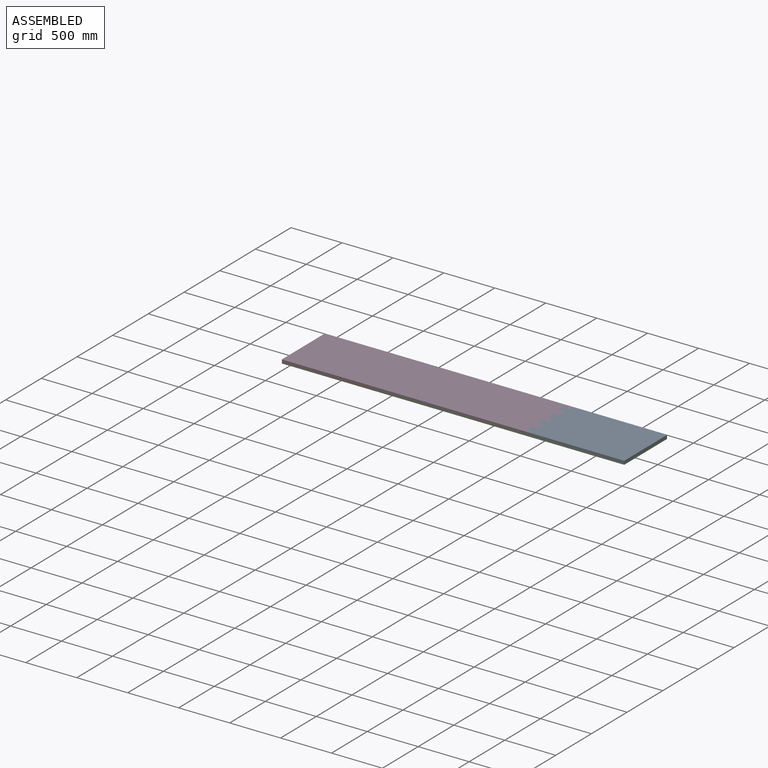
[diagram: assembled view]
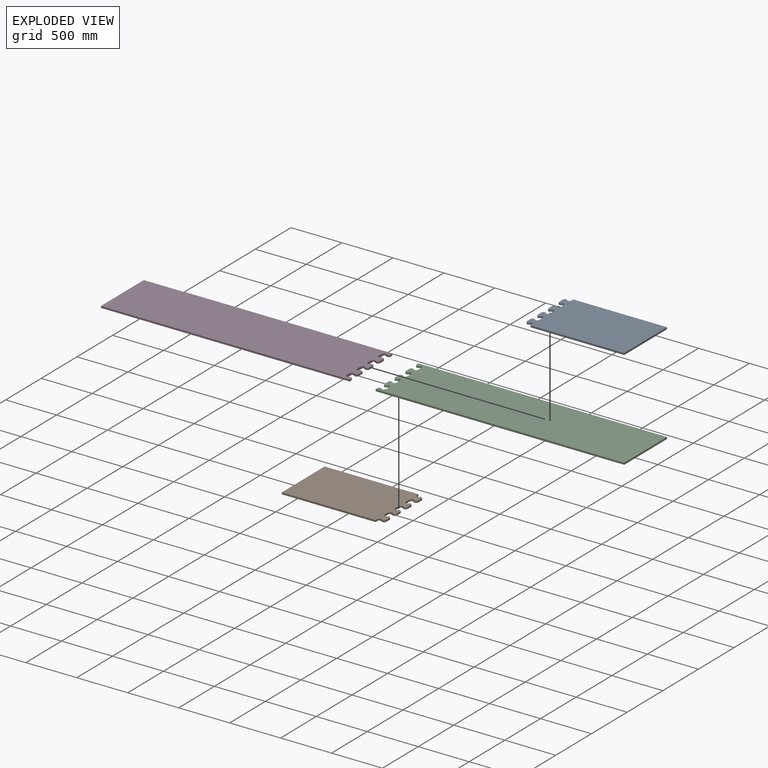
[diagram: exploded view]
GUIDED TOUR — MATED ASSEMBLY (Onshape document 2c39e0336931a6de3b115671, AutoMate assembly 2c39e0336931a6de3b115671_1bd109c0c82dfc7779f7eec5_308f37ecb69515ca1b33627b_default)

This assembly has 4 components, labeled P0..P3 below (a component is one placed occurrence of a part; the same part can appear more than once), held together by 3 mates. A mate is a constraint between two components; its type names the relative motion it leaves free:
  FASTENED — locks the two components together rigidly (no relative motion).
Axis/direction vectors are unit vectors and 'through' points are millimeter coordinates, both in the assembly's world frame.

MATES
  1. FASTENED "Fastened 2": P1 <-> P3, direction (0.000, 0.000, 1.000) through (-1086.92, 312.04, 18.00) mm
  2. FASTENED "Fastened 1": P0 <-> P3, direction (-1.000, 0.000, 0.000) through (1285.15, 237.04, 27.00) mm
  3. FASTENED "Fastened 3": P0 <-> P2, direction (0.000, 0.000, -1.000) through (2273.08, -287.96, 18.00) mm

ASSEMBLY ORDER
  1. P2 — the base component [order verified]
  2. P1 [order verified]
  3. P3 [order verified]
  4. P0 [order verified]
Order-tag legend:
  [order verified] — this step's position reverses a verified removal order: the component was checked to insert without passing through the ones already placed.

Of the 4 components, 4 carry the full construction recipe — the FeatureScript program that regenerates the part's solid from scratch; the rest are supplied as boundary geometry only.
Each toured component is shown spotlighted twice — in the assembled view, then in the exploded view, where a leader line traces a displaced component back to its assembled socket (saturated green if recipe-attached, orange if geometry-only; every other component desaturated gray) — followed by its recipe or geometry summary and the mates that hold it.
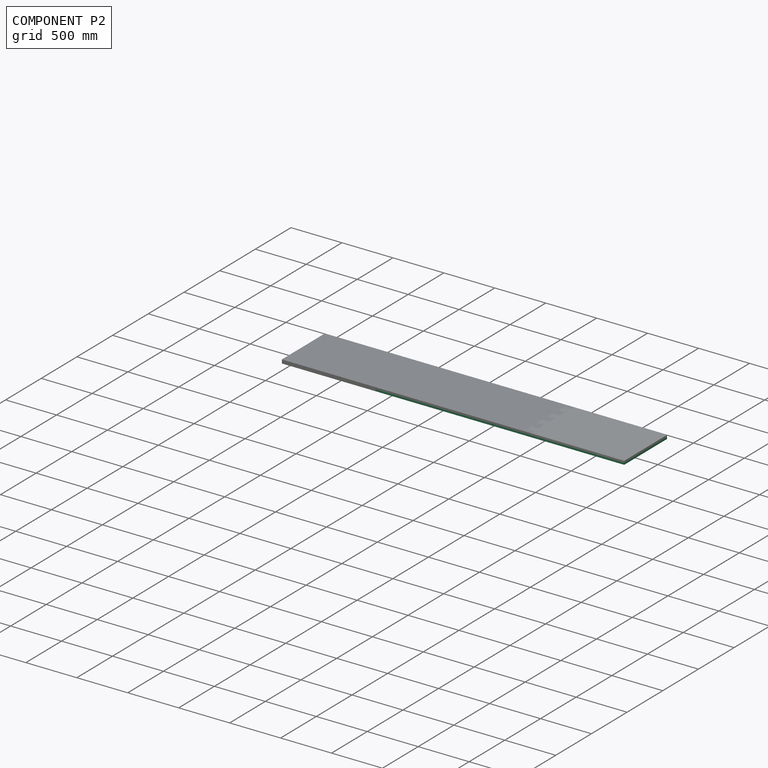
[diagram: component P2 — assembled]
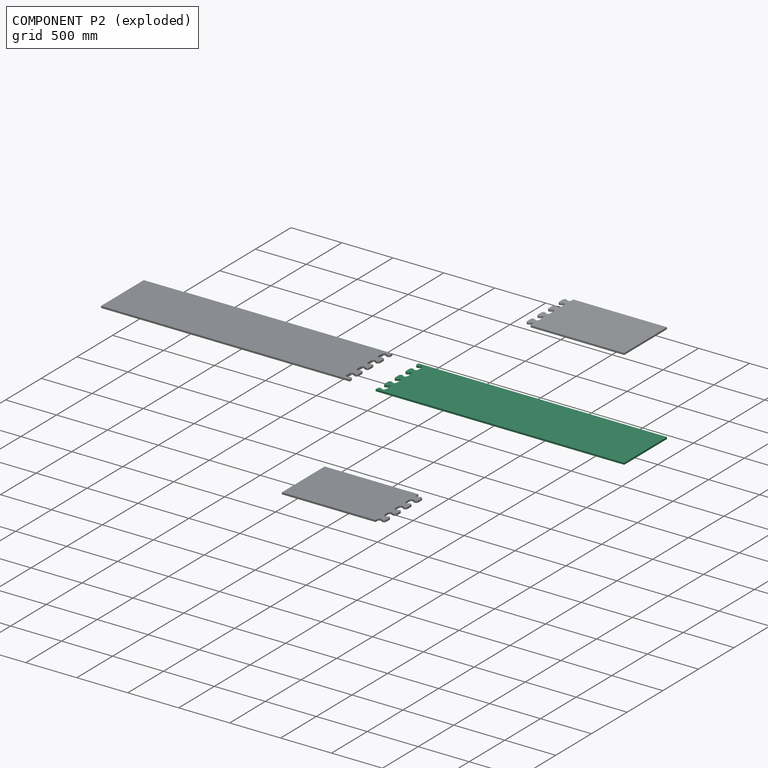
[diagram: component P2 — exploded]
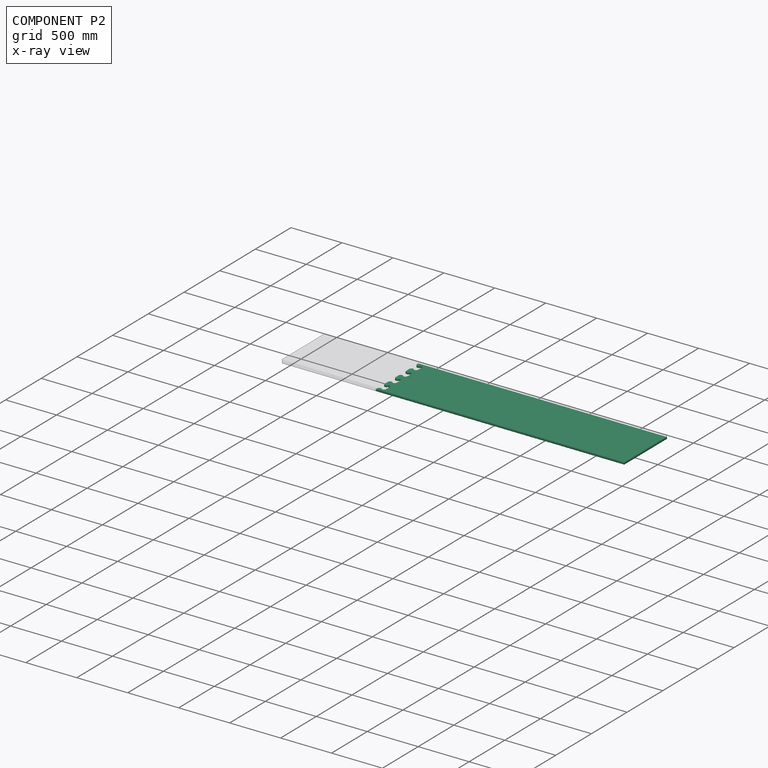
[diagram: component P2 — x-ray view]
COMPONENT P2 — recipe-attached (CADFS 00463583, mesh-verified: the recipe's output STEP matches this component's geometry to below the mesh-comparison resolution (tessellation chordal tolerance ~3.77 mm)).
Held by: FASTENED mate "Fastened 3" to P0.
Construction recipe (FeatureScript — the CAD program that rebuilds this solid; sketch coordinates are in the units given by the * unit suffixes, e.g. mm):

FeatureScript 1511;
import(path : "onshape/std/geometry.fs", version : "1511.0");
import(path : "onshape/std/common.fs", version : "1511.0");
const mm = millimeter;
const VERTEX = EntityType.VERTEX;
const EDGE = EntityType.EDGE;
const FACE = EntityType.FACE;
const BODY = EntityType.BODY;
function v(x, y){return vector(x, y);}
function OD(order){return orderDisambiguation(order);}
function OSD(set){return originalSetDisambiguation(set);}
function TD(topology){return topologyDisambiguation(topology);}
function TDD(query){return trueDependencyDisambiguation(query);}
function sQuery(a, b, c) {return sketchEntityQuery(a, b, c);}

annotation { "Feature Type Name" : "Feature", "Feature Type Description" : "" }
export const myFeature = defineFeature(function(context is Context, id is Id, definition is map)
    precondition{}
    {
        {
            var Q0;
            Q0=qCreatedBy(makeId("Top.planeOp"),FACE);
            var sketch = newSketch(context, id + "F0", { "sketchPlane" : qUnion([Q0])});
            skLineSegment(sketch, "E0.bottom", {"start": v(-1236.35, 978.6) * mm, "end": v(1203.65, 978.6) * mm});
            skLineSegment(sketch, "E0.right", {"start": v(1203.65, 978.6) * mm, "end": v(1203.65, 378.6) * mm});
            skLineSegment(sketch, "E1", {"start": v(-1236.35, 978.6) * mm, "end": v(-1236.35, 953.6) * mm});
            skLineSegment(sketch, "E2", {"start": v(-1236.35, 953.6) * mm, "end": v(-1236.35, 903.6) * mm, "construction": true});
            skLineSegment(sketch, "E3", {"start": v(-1168.41, 928.6) * mm, "end": v(-1168.41, 903.6) * mm});
            skLineSegment(sketch, "E4", {"start": v(-1236.35, 903.6) * mm, "end": v(-1168.41, 903.6) * mm, "construction": true});
            skLineSegment(sketch, "E5", {"start": v(-1236.35, 953.6) * mm, "end": v(-1168.41, 928.6) * mm, "construction": true});
            skArc(sketch, "E6", {"start": v(-1236.35, 953.6) * mm, "mid": v(-1223.73, 935.5) * mm, "end": v(-1202.38, 941.1) * mm});
            skArc(sketch, "E7", {"start": v(-1168.41, 928.6) * mm, "mid": v(-1181.04, 946.7) * mm, "end": v(-1202.38, 941.1) * mm});
            skArc(sketch, "E8.MirrorCS", {"start": v(-1236.35, 853.6) * mm, "mid": v(-1223.73, 871.7) * mm, "end": v(-1202.38, 866.1) * mm});
            skArc(sketch, "E9.MirrorCS", {"start": v(-1168.41, 878.6) * mm, "mid": v(-1181.04, 860.5) * mm, "end": v(-1202.38, 866.1) * mm});
            skLineSegment(sketch, "E10.MirrorCS", {"start": v(-1168.41, 878.6) * mm, "end": v(-1168.41, 903.6) * mm});
            skLineSegment(sketch, "E11", {"start": v(-1236.35, 853.6) * mm, "end": v(-1236.35, 803.6) * mm});
            skArc(sketch, "E12.0.1.0", {"start": v(-1236.35, 803.6) * mm, "mid": v(-1223.73, 785.5) * mm, "end": v(-1202.38, 791.1) * mm});
            skArc(sketch, "E12.0.1.1", {"start": v(-1168.41, 778.6) * mm, "mid": v(-1181.04, 796.7) * mm, "end": v(-1202.38, 791.1) * mm});
            skLineSegment(sketch, "E12.0.1.2", {"start": v(-1168.41, 778.6) * mm, "end": v(-1168.41, 753.6) * mm});
            skLineSegment(sketch, "E12.0.1.3", {"start": v(-1168.41, 728.6) * mm, "end": v(-1168.41, 753.6) * mm});
            skArc(sketch, "E12.0.1.4", {"start": v(-1168.41, 728.6) * mm, "mid": v(-1181.04, 710.5) * mm, "end": v(-1202.38, 716.1) * mm});
            skArc(sketch, "E12.0.1.5", {"start": v(-1236.35, 703.6) * mm, "mid": v(-1223.73, 721.7) * mm, "end": v(-1202.38, 716.1) * mm});
            skLineSegment(sketch, "E12.0.1.6", {"start": v(-1236.35, 703.6) * mm, "end": v(-1236.35, 653.6) * mm});
            skArc(sketch, "E12.0.2.0", {"start": v(-1236.35, 653.6) * mm, "mid": v(-1223.73, 635.5) * mm, "end": v(-1202.38, 641.1) * mm});
            skArc(sketch, "E12.0.2.1", {"start": v(-1168.41, 628.6) * mm, "mid": v(-1181.04, 646.7) * mm, "end": v(-1202.38, 641.1) * mm});
            skLineSegment(sketch, "E12.0.2.2", {"start": v(-1168.41, 628.6) * mm, "end": v(-1168.41, 603.6) * mm});
            skLineSegment(sketch, "E12.0.2.3", {"start": v(-1168.41, 578.6) * mm, "end": v(-1168.41, 603.6) * mm});
            skArc(sketch, "E12.0.2.4", {"start": v(-1168.41, 578.6) * mm, "mid": v(-1181.04, 560.5) * mm, "end": v(-1202.38, 566.1) * mm});
            skArc(sketch, "E12.0.2.5", {"start": v(-1236.35, 553.6) * mm, "mid": v(-1223.73, 571.7) * mm, "end": v(-1202.38, 566.1) * mm});
            skLineSegment(sketch, "E12.0.2.6", {"start": v(-1236.35, 553.6) * mm, "end": v(-1236.35, 503.6) * mm});
            skArc(sketch, "E12.0.3.0", {"start": v(-1236.35, 503.6) * mm, "mid": v(-1223.73, 485.5) * mm, "end": v(-1202.38, 491.1) * mm});
            skArc(sketch, "E12.0.3.1", {"start": v(-1168.41, 478.6) * mm, "mid": v(-1181.04, 496.7) * mm, "end": v(-1202.38, 491.1) * mm});
            skLineSegment(sketch, "E12.0.3.2", {"start": v(-1168.41, 478.6) * mm, "end": v(-1168.41, 453.6) * mm});
            skLineSegment(sketch, "E12.0.3.3", {"start": v(-1168.41, 428.6) * mm, "end": v(-1168.41, 453.6) * mm});
            skArc(sketch, "E12.0.3.4", {"start": v(-1168.41, 428.6) * mm, "mid": v(-1181.04, 410.5) * mm, "end": v(-1202.38, 416.1) * mm});
            skArc(sketch, "E12.0.3.5", {"start": v(-1236.35, 403.6) * mm, "mid": v(-1223.73, 421.7) * mm, "end": v(-1202.38, 416.1) * mm});
            skLineSegment(sketch, "E12.0.3.6", {"start": v(-1236.35, 403.6) * mm, "end": v(-1236.35, 378.6) * mm});
            skLineSegment(sketch, "E12.direction1", {"start": v(-1236.35, 803.6) * mm, "end": v(-1211.35, 803.6) * mm, "construction": true});
            skLineSegment(sketch, "E12.direction2", {"start": v(-1236.35, 803.6) * mm, "end": v(-1236.35, 653.6) * mm, "construction": true});
            skLineSegment(sketch, "E13.0", {"start": v(-1236.35, 378.6) * mm, "end": v(1203.65, 378.6) * mm});
            skSolve(sketch);
        }
        {
            var Q0;
            Q0=makeQuery(id+"F0.imprint","IMPRINT",FACE,{"disambiguationData":[TD([[makeQuery(id+"F0.imprint","IMPRINT",EDGE,{"derivedFrom":sQuery(id+"F0.wireOp",EDGE,"E0.bottom")}),-1.0]])]});
            extrude(context, id + "F1", {"entities" : qUnion([Q0]), "depth" : 18 * mm});
        }
    });
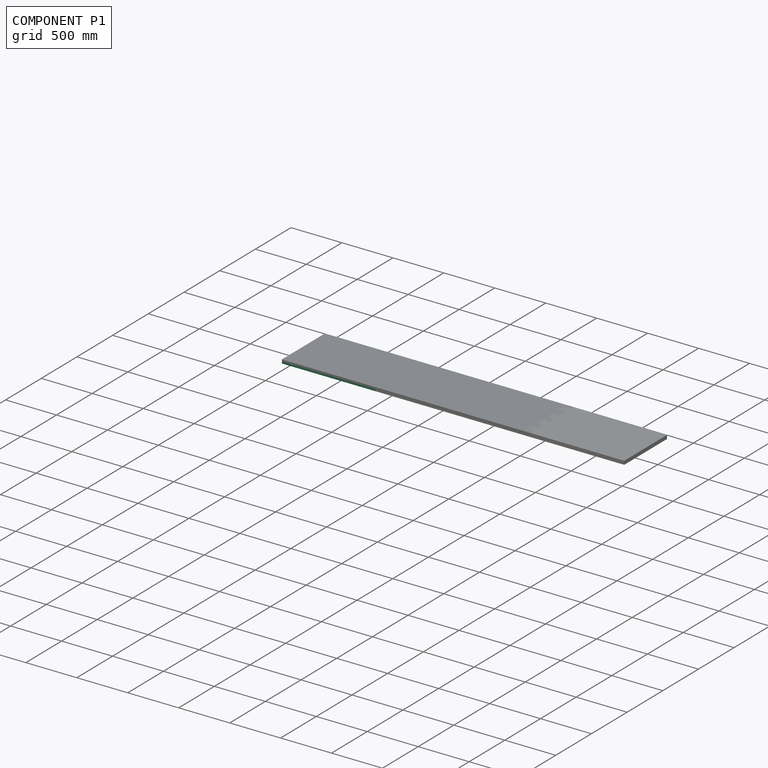
[diagram: component P1 — assembled]
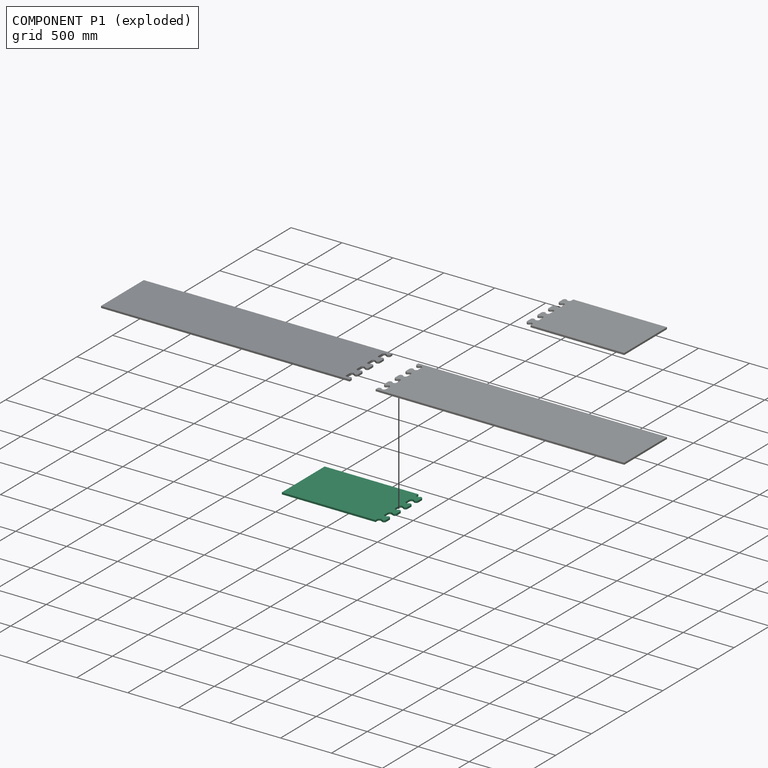
[diagram: component P1 — exploded]
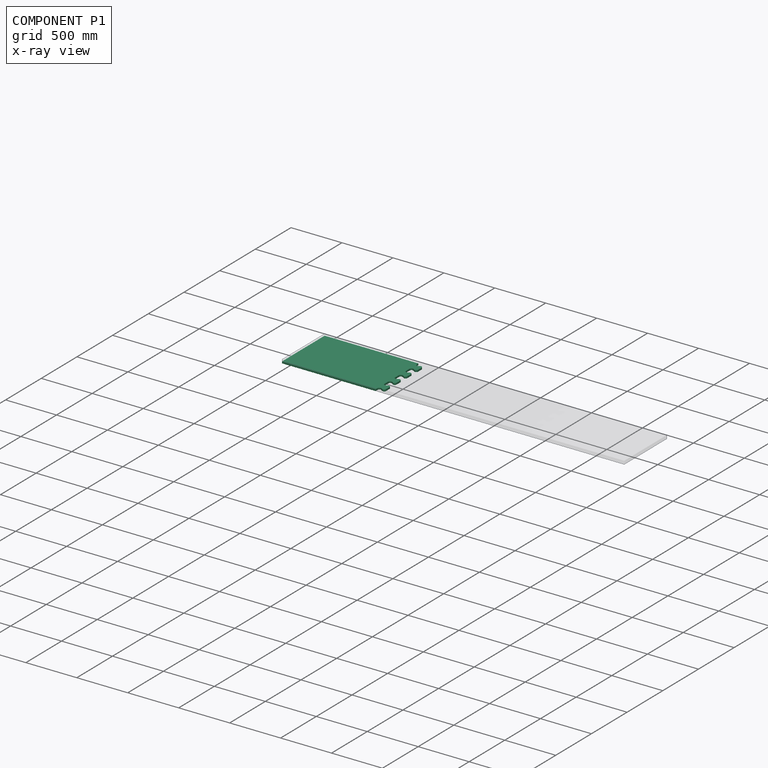
[diagram: component P1 — x-ray view]
COMPONENT P1 — same part as P0 (CADFS 00463584); its construction recipe is shown at P0.
Held by: FASTENED mate "Fastened 2" to P3.
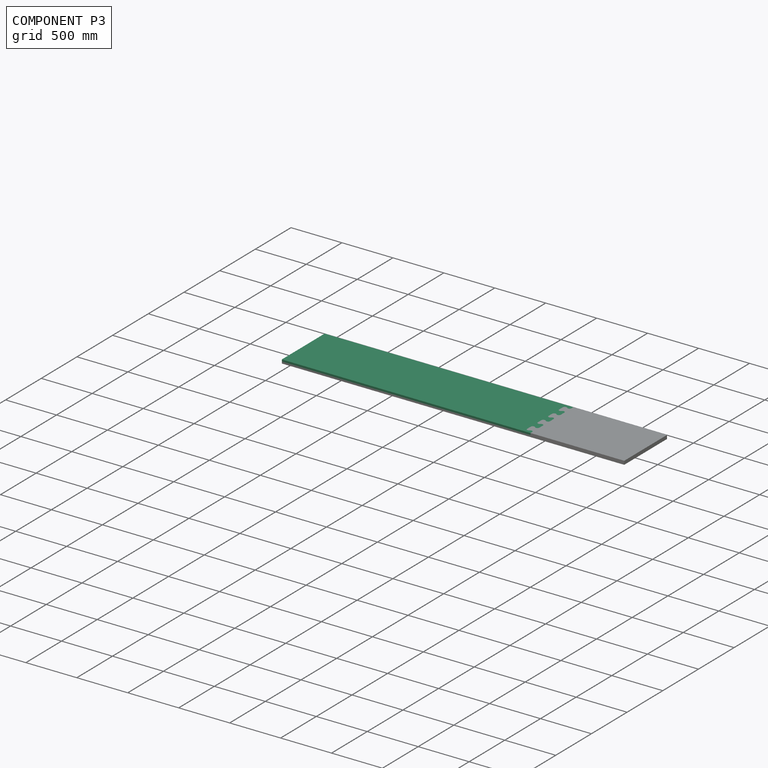
[diagram: component P3 — assembled]
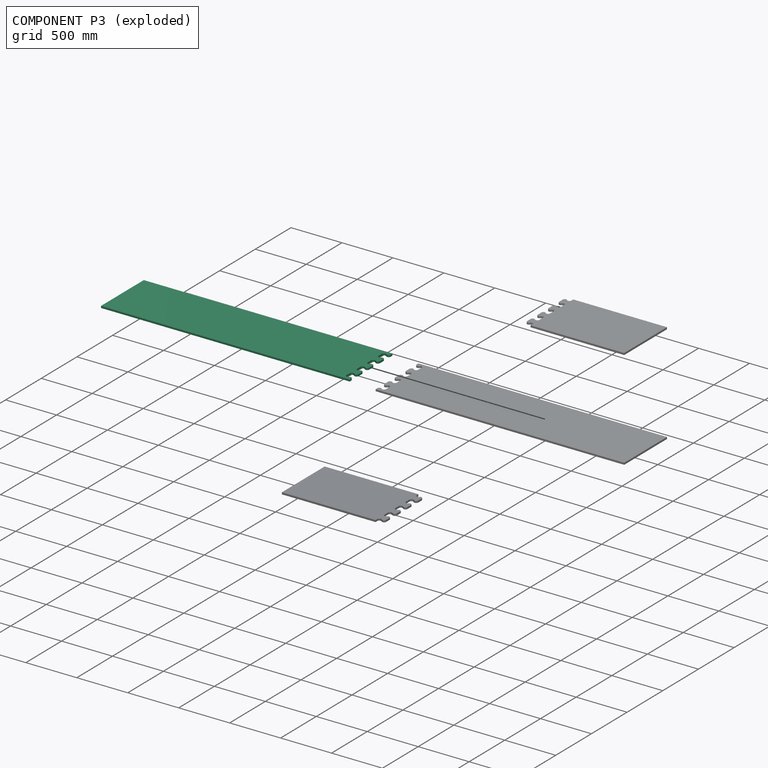
[diagram: component P3 — exploded]
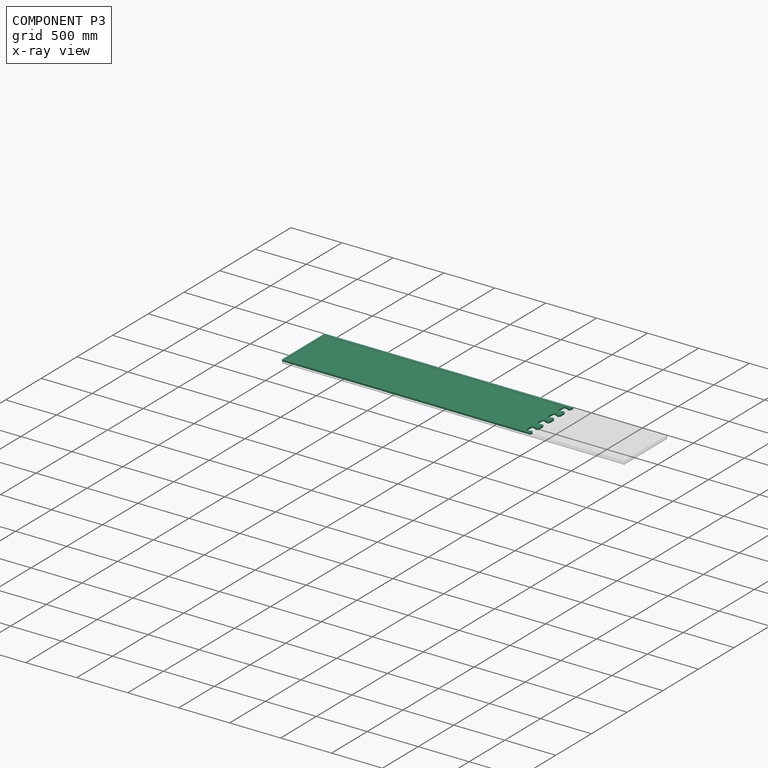
[diagram: component P3 — x-ray view]
COMPONENT P3 — same part as P2 (CADFS 00463583); its construction recipe is shown at P2.
Held by: FASTENED mate "Fastened 2" to P1; FASTENED mate "Fastened 1" to P0.
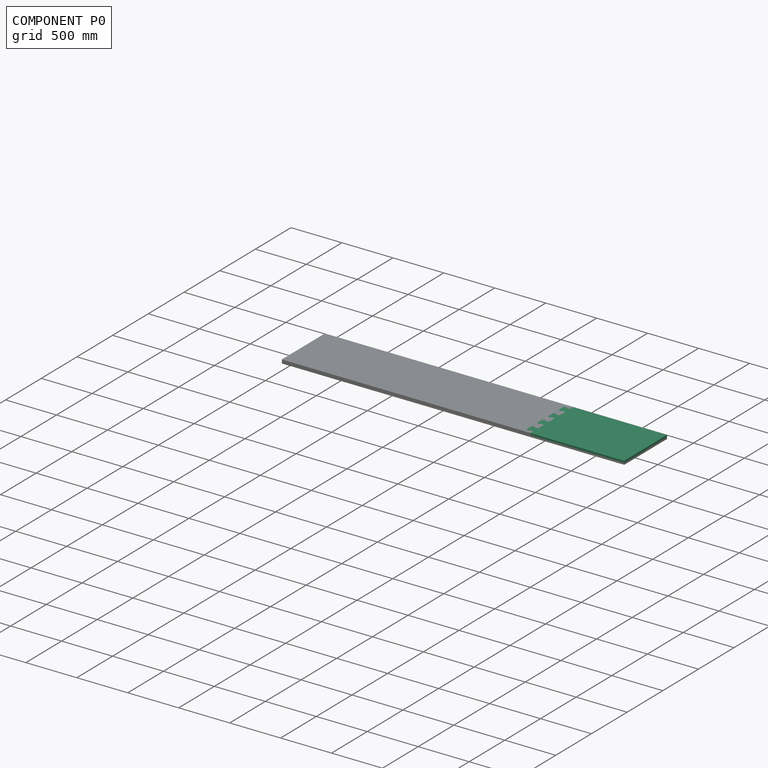
[diagram: component P0 — assembled]
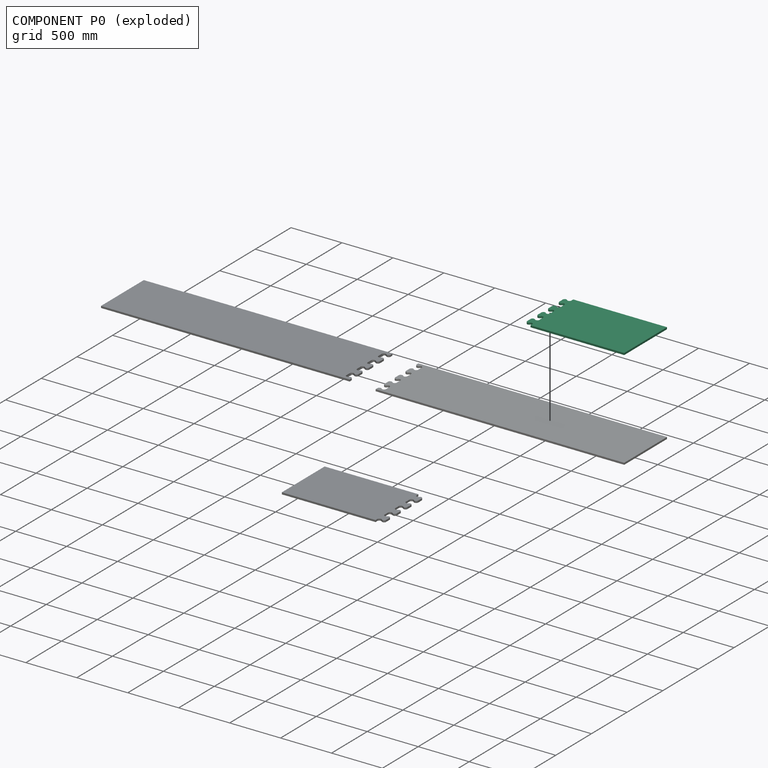
[diagram: component P0 — exploded]
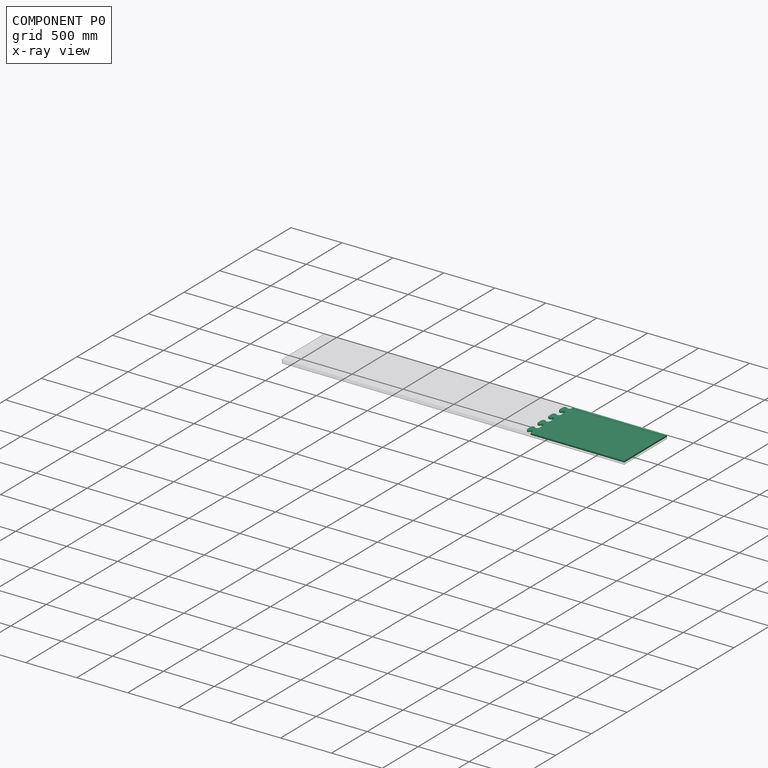
[diagram: component P0 — x-ray view]
COMPONENT P0 — recipe-attached (CADFS 00463584, mesh-verified: the recipe's output STEP matches this component's geometry to below the mesh-comparison resolution (tessellation chordal tolerance ~1.73 mm)).
Held by: FASTENED mate "Fastened 1" to P3; FASTENED mate "Fastened 3" to P2.
Construction recipe (FeatureScript — the CAD program that rebuilds this solid; sketch coordinates are in the units given by the * unit suffixes, e.g. mm):

FeatureScript 1511;
import(path : "onshape/std/geometry.fs", version : "1511.0");
import(path : "onshape/std/common.fs", version : "1511.0");
const mm = millimeter;
const VERTEX = EntityType.VERTEX;
const EDGE = EntityType.EDGE;
const FACE = EntityType.FACE;
const BODY = EntityType.BODY;
function v(x, y){return vector(x, y);}
function OD(order){return orderDisambiguation(order);}
function OSD(set){return originalSetDisambiguation(set);}
function TD(topology){return topologyDisambiguation(topology);}
function TDD(query){return trueDependencyDisambiguation(query);}
function sQuery(a, b, c) {return sketchEntityQuery(a, b, c);}

annotation { "Feature Type Name" : "Feature", "Feature Type Description" : "" }
export const myFeature = defineFeature(function(context is Context, id is Id, definition is map)
    precondition{}
    {
        {
            var Q0;
            Q0=qCreatedBy(makeId("Top.planeOp"),FACE);
            var sketch = newSketch(context, id + "F0", { "sketchPlane" : qUnion([Q0])});
            skLineSegment(sketch, "E0.right", {"start": v(-2156.35, 978.6) * mm, "end": v(-2156.35, 378.6) * mm});
            skLineSegment(sketch, "E1", {"start": v(-1236.35, 978.6) * mm, "end": v(-1236.35, 953.6) * mm});
            skLineSegment(sketch, "E2", {"start": v(-1236.35, 953.6) * mm, "end": v(-1236.35, 903.6) * mm, "construction": true});
            skLineSegment(sketch, "E3", {"start": v(-1168.41, 928.6) * mm, "end": v(-1168.41, 903.6) * mm});
            skLineSegment(sketch, "E4", {"start": v(-1236.35, 903.6) * mm, "end": v(-1168.41, 903.6) * mm, "construction": true});
            skLineSegment(sketch, "E5", {"start": v(-1236.35, 953.6) * mm, "end": v(-1168.41, 928.6) * mm, "construction": true});
            skArc(sketch, "E6", {"start": v(-1236.35, 953.6) * mm, "mid": v(-1223.73, 935.5) * mm, "end": v(-1202.38, 941.1) * mm});
            skArc(sketch, "E7", {"start": v(-1168.41, 928.6) * mm, "mid": v(-1181.04, 946.7) * mm, "end": v(-1202.38, 941.1) * mm});
            skArc(sketch, "E8.MirrorCS", {"start": v(-1236.35, 853.6) * mm, "mid": v(-1223.73, 871.7) * mm, "end": v(-1202.38, 866.1) * mm});
            skArc(sketch, "E9.MirrorCS", {"start": v(-1168.41, 878.6) * mm, "mid": v(-1181.04, 860.5) * mm, "end": v(-1202.38, 866.1) * mm});
            skLineSegment(sketch, "E10.MirrorCS", {"start": v(-1168.41, 878.6) * mm, "end": v(-1168.41, 903.6) * mm});
            skLineSegment(sketch, "E11", {"start": v(-1236.35, 853.6) * mm, "end": v(-1236.35, 803.6) * mm});
            skArc(sketch, "E12.0.1.0", {"start": v(-1236.35, 803.6) * mm, "mid": v(-1223.73, 785.5) * mm, "end": v(-1202.38, 791.1) * mm});
            skArc(sketch, "E12.0.1.1", {"start": v(-1168.41, 778.6) * mm, "mid": v(-1181.04, 796.7) * mm, "end": v(-1202.38, 791.1) * mm});
            skLineSegment(sketch, "E12.0.1.2", {"start": v(-1168.41, 778.6) * mm, "end": v(-1168.41, 753.6) * mm});
            skLineSegment(sketch, "E12.0.1.3", {"start": v(-1168.41, 728.6) * mm, "end": v(-1168.41, 753.6) * mm});
            skArc(sketch, "E12.0.1.4", {"start": v(-1168.41, 728.6) * mm, "mid": v(-1181.04, 710.5) * mm, "end": v(-1202.38, 716.1) * mm});
            skArc(sketch, "E12.0.1.5", {"start": v(-1236.35, 703.6) * mm, "mid": v(-1223.73, 721.7) * mm, "end": v(-1202.38, 716.1) * mm});
            skLineSegment(sketch, "E12.0.1.6", {"start": v(-1236.35, 703.6) * mm, "end": v(-1236.35, 653.6) * mm});
            skArc(sketch, "E12.0.2.0", {"start": v(-1236.35, 653.6) * mm, "mid": v(-1223.73, 635.5) * mm, "end": v(-1202.38, 641.1) * mm});
            skArc(sketch, "E12.0.2.1", {"start": v(-1168.41, 628.6) * mm, "mid": v(-1181.04, 646.7) * mm, "end": v(-1202.38, 641.1) * mm});
            skLineSegment(sketch, "E12.0.2.2", {"start": v(-1168.41, 628.6) * mm, "end": v(-1168.41, 603.6) * mm});
            skLineSegment(sketch, "E12.0.2.3", {"start": v(-1168.41, 578.6) * mm, "end": v(-1168.41, 603.6) * mm});
            skArc(sketch, "E12.0.2.4", {"start": v(-1168.41, 578.6) * mm, "mid": v(-1181.04, 560.5) * mm, "end": v(-1202.38, 566.1) * mm});
            skArc(sketch, "E12.0.2.5", {"start": v(-1236.35, 553.6) * mm, "mid": v(-1223.73, 571.7) * mm, "end": v(-1202.38, 566.1) * mm});
            skLineSegment(sketch, "E12.0.2.6", {"start": v(-1236.35, 553.6) * mm, "end": v(-1236.35, 503.6) * mm});
            skArc(sketch, "E12.0.3.0", {"start": v(-1236.35, 503.6) * mm, "mid": v(-1223.73, 485.5) * mm, "end": v(-1202.38, 491.1) * mm});
            skArc(sketch, "E12.0.3.1", {"start": v(-1168.41, 478.6) * mm, "mid": v(-1181.04, 496.7) * mm, "end": v(-1202.38, 491.1) * mm});
            skLineSegment(sketch, "E12.0.3.2", {"start": v(-1168.41, 478.6) * mm, "end": v(-1168.41, 453.6) * mm});
            skLineSegment(sketch, "E12.0.3.3", {"start": v(-1168.41, 428.6) * mm, "end": v(-1168.41, 453.6) * mm});
            skArc(sketch, "E12.0.3.4", {"start": v(-1168.41, 428.6) * mm, "mid": v(-1181.04, 410.5) * mm, "end": v(-1202.38, 416.1) * mm});
            skArc(sketch, "E12.0.3.5", {"start": v(-1236.35, 403.6) * mm, "mid": v(-1223.73, 421.7) * mm, "end": v(-1202.38, 416.1) * mm});
            skLineSegment(sketch, "E12.0.3.6", {"start": v(-1236.35, 403.6) * mm, "end": v(-1236.35, 378.6) * mm});
            skLineSegment(sketch, "E12.direction1", {"start": v(-1236.35, 803.6) * mm, "end": v(-1211.35, 803.6) * mm, "construction": true});
            skLineSegment(sketch, "E12.direction2", {"start": v(-1236.35, 803.6) * mm, "end": v(-1236.35, 653.6) * mm, "construction": true});
            skLineSegment(sketch, "E13", {"start": v(-2156.35, 978.6) * mm, "end": v(-1236.35, 978.6) * mm});
            skLineSegment(sketch, "E14", {"start": v(-2156.35, 378.6) * mm, "end": v(-1236.35, 378.6) * mm});
            skSolve(sketch);
        }
        {
            var Q0;
            Q0=makeQuery(id+"F0.imprint","IMPRINT",FACE,{"disambiguationData":[TD([[makeQuery(id+"F0.imprint","IMPRINT",EDGE,{"derivedFrom":sQuery(id+"F0.wireOp",EDGE,"E0.right")}),1.0]])]});
            extrude(context, id + "F1", {"entities" : qUnion([Q0]), "depth" : 18 * mm});
        }
    });
PROVENANCE & LICENSES
Assembly (occurrences, transforms, mates, per-part STEP geometry): AutoMate dataset, Zenodo record 7776208, CC0.
Construction recipes: CADFS (HuggingFace VladPyatov/CADFS, CC-BY-4.0, layered over the ABC dataset), FeatureScript reconstruction programs keyed by ABC model id.
Join: ABC meta listings map ABC model id -> Onshape documentId; within a shared document, parts are matched by geometric signature (bounding-box dims + volume at 0.1% relative tolerance, exact B-rep face/solid counts).
Verification: 4 of this assembly's 4 components carry a recipe attachment, and every attachment is mesh-verified: the CADFS STEP and the AutoMate member STEP were compared as meshes in their shared local frame (symmetric sampled-point-to-mesh distance); worst across the 4 attachments: below the mesh-comparison resolution (tessellation chordal tolerance ~3.77 mm) on a 2513 mm part.
Renders: orthographic iso camera (az 35 / el 25); the floor grid conveys scale (grid pitch printed in each image; no ruler). In the exploded view each component is displaced by its stored offset vector: the offsets alone carry the explosion direction (mate normal/axis signs are not orientation cues and do not encode it), and separation distances are assigned per mate-chain, not proportionally to assembly-order depth.
